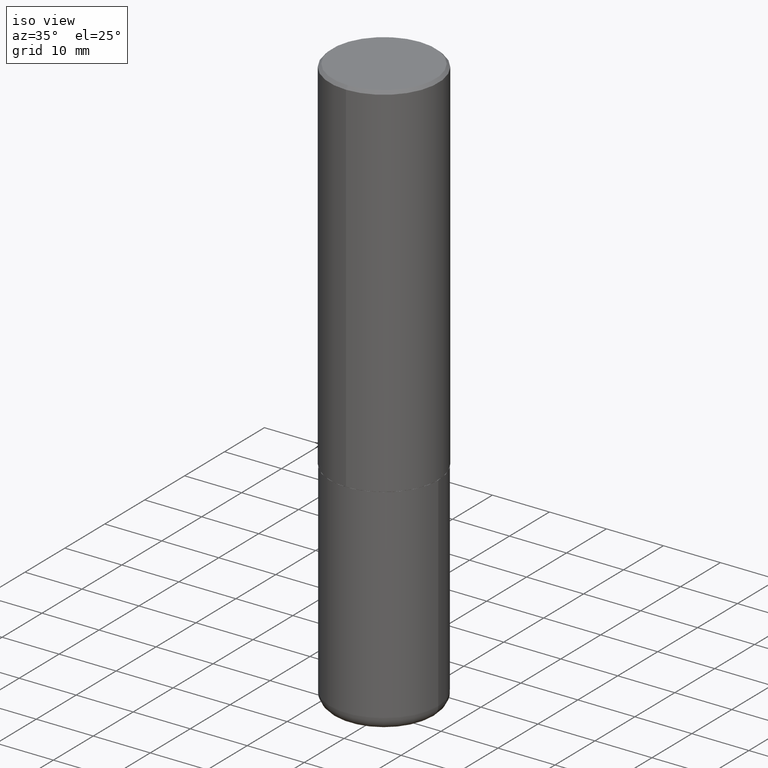
[diagram: clean part render]
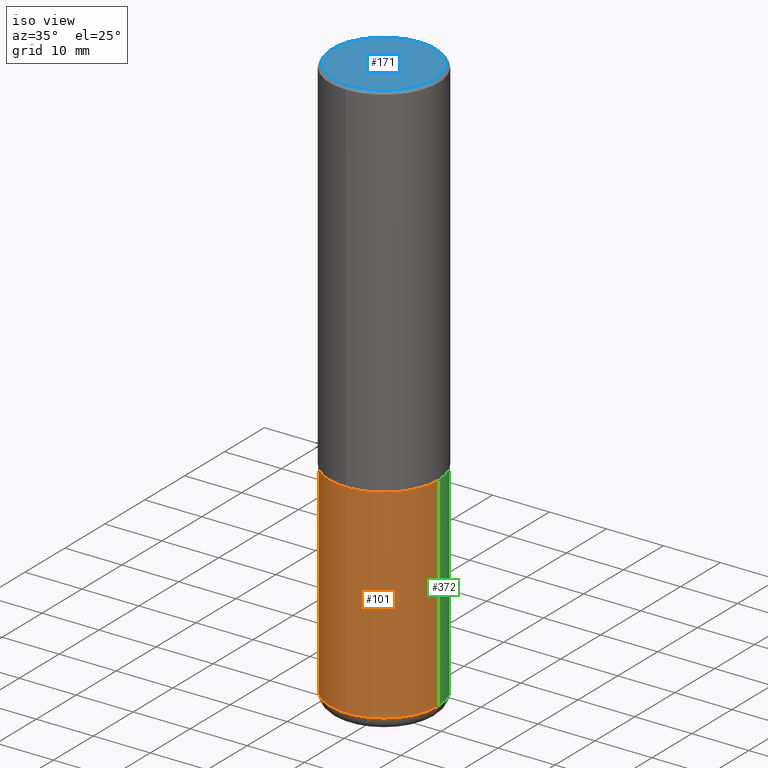
[diagram: same view with three faces highlighted in distinct colors, each labeled with its STEP entity id]
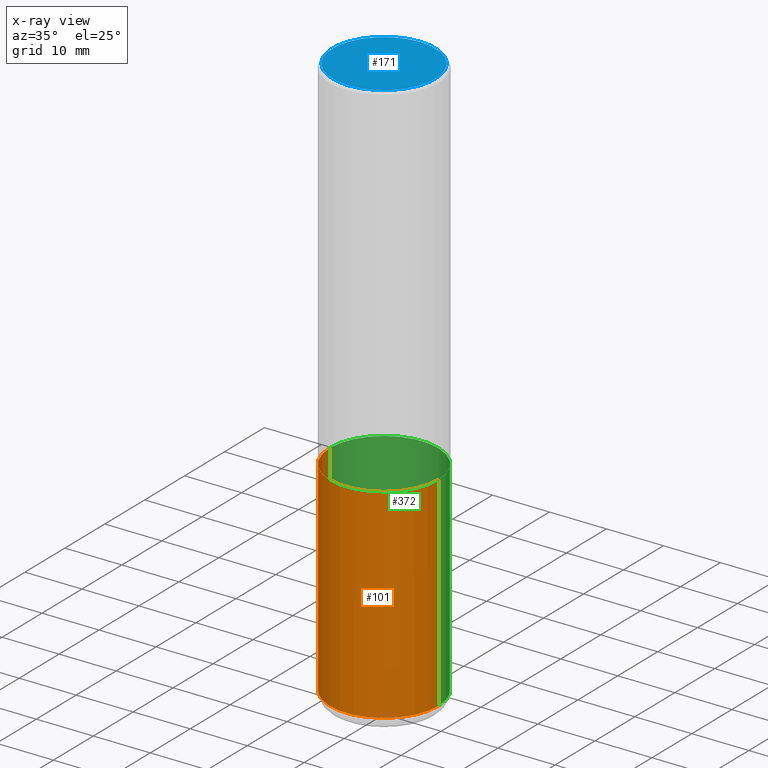
[diagram: x-ray of the same camera — body ghosted, the three highlighted faces saturated]
A machine part, iso view with three faces highlighted in distinct colors.
The next image is the same camera in x-ray (body ghosted, the three faces saturated) — at least one of them is partly hidden behind the body in this view.
Their STEP definitions:

[orange] entity #101 — the highlighted cylindrical surface (partial cylindrical patch) has radius 9.525 mm, axis along (-0, 0, 1).
#4 = DIRECTION ( 'NONE',  ( -2.445468806185136597E-29, 3.491481338843145583E-15, 1.000000000000000000 ) ) ;
#6 = VERTEX_POINT ( 'NONE', #354 ) ;
#8 = DIRECTION ( 'NONE',  ( -2.445468806185136877E-29, 3.491481338843145188E-15, 1.000000000000000000 ) ) ;
#11 = CARTESIAN_POINT ( 'NONE',  ( 6.113672015462840371E-29, -8.728703347107863365E-15, -2.499999999999999556 ) ) ;
#17 = CARTESIAN_POINT ( 'NONE',  ( 0.3749999999999999445, -2.618611004132349622E-15, 1.828566290923475642E-29 ) ) ;
#22 = DIRECTION ( 'NONE',  ( -2.445468806185136597E-29, 3.491481338843145583E-15, 1.000000000000000000 ) ) ;
#54 = ORIENTED_EDGE ( 'NONE', *, *, #252, .T. ) ;
#61 = ORIENTED_EDGE ( 'NONE', *, *, #148, .F. ) ;
#68 = FACE_OUTER_BOUND ( 'NONE', #92, .T. ) ;
#71 = CYLINDRICAL_SURFACE ( 'NONE', #365, 0.3749999999999999445 ) ;
#79 = CARTESIAN_POINT ( 'NONE',  ( 0.3750000000000000555, -1.134731435124021180E-14, -2.499999999999999556 ) ) ;
#88 = ORIENTED_EDGE ( 'NONE', *, *, #315, .F. ) ;
#92 = EDGE_LOOP ( 'NONE', ( #61, #284, #54, #88 ) ) ;
#101 = ADVANCED_FACE ( 'NONE', ( #68 ), #71, .T. ) ;
#131 = LINE ( 'NONE', #17, #322 ) ;
#134 = DIRECTION ( 'NONE',  ( 1.000000000000000000, -6.982962677686264344E-15, 0.000000000000000000 ) ) ;
#148 = EDGE_CURVE ( 'NONE', #6, #389, #195, .T. ) ;
#158 = AXIS2_PLACEMENT_3D ( 'NONE', #11, #234, #134 ) ;
#172 = CARTESIAN_POINT ( 'NONE',  ( 0.3749999999999999445, -1.627030303900904751E-14, -3.910000000000000142 ) ) ;
#189 = DIRECTION ( 'NONE',  ( 1.000000000000000000, -6.982962677686266711E-15, 4.876176775795935793E-29 ) ) ;
#195 = LINE ( 'NONE', #261, #293 ) ;
#197 = AXIS2_PLACEMENT_3D ( 'NONE', #415, #22, #370 ) ;
#223 = VERTEX_POINT ( 'NONE', #79 ) ;
#224 = VERTEX_POINT ( 'NONE', #172 ) ;
#234 = DIRECTION ( 'NONE',  ( -2.445468806185136597E-29, 3.491481338843145583E-15, 1.000000000000000000 ) ) ;
#252 = EDGE_CURVE ( 'NONE', #224, #223, #131, .T. ) ;
#260 = CIRCLE ( 'NONE', #197, 0.3749999999999999445 ) ;
#261 = CARTESIAN_POINT ( 'NONE',  ( -0.3749999999999999445, 2.664535259100375303E-15, -1.844600658845589318E-29 ) ) ;
#284 = ORIENTED_EDGE ( 'NONE', *, *, #367, .T. ) ;
#285 = CIRCLE ( 'NONE', #158, 0.3750000000000000555 ) ;
#293 = VECTOR ( 'NONE', #8, 39.37007874015748143 ) ;
#315 = EDGE_CURVE ( 'NONE', #389, #223, #285, .T. ) ;
#321 = DIRECTION ( 'NONE',  ( -2.445468806185136877E-29, 3.491481338843145188E-15, 1.000000000000000000 ) ) ;
#322 = VECTOR ( 'NONE', #321, 39.37007874015748143 ) ;
#331 = CARTESIAN_POINT ( 'NONE',  ( -0.3750000000000000555, -8.525662431891907096E-15, -2.499999999999999556 ) ) ;
#345 = CARTESIAN_POINT ( 'NONE',  ( 0.000000000000000000, 0.000000000000000000, 0.000000000000000000 ) ) ;
#354 = CARTESIAN_POINT ( 'NONE',  ( -0.3749999999999999445, -1.098715677577632652E-14, -3.910000000000000142 ) ) ;
#365 = AXIS2_PLACEMENT_3D ( 'NONE', #345, #4, #189 ) ;
#367 = EDGE_CURVE ( 'NONE', #6, #224, #260, .T. ) ;
#370 = DIRECTION ( 'NONE',  ( 1.000000000000000000, -6.982962677686263555E-15, 0.000000000000000000 ) ) ;
#389 = VERTEX_POINT ( 'NONE', #331 ) ;
#415 = CARTESIAN_POINT ( 'NONE',  ( 9.561783032183883600E-29, -1.365169203487670064E-14, -3.910000000000000142 ) ) ;

[blue] entity #171 — the highlighted planar face has unit normal (0, -0, -1).
#15 = DIRECTION ( 'NONE',  ( 2.444465131706344694E-29, -3.492918657822378868E-15, -1.000000000000000000 ) ) ;
#16 = ORIENTED_EDGE ( 'NONE', *, *, #323, .T. ) ;
#38 = CARTESIAN_POINT ( 'NONE',  ( -2.504081769186608216E-15, -0.3549999999999999267, 1.308792571606178433E-15 ) ) ;
#77 = DIRECTION ( 'NONE',  ( 6.982962677686265922E-15, 1.000000000000000000, -3.492918657822378868E-15 ) ) ;
#84 = ORIENTED_EDGE ( 'NONE', *, *, #87, .T. ) ;
#87 = EDGE_CURVE ( 'NONE', #147, #309, #137, .T. ) ;
#102 = CARTESIAN_POINT ( 'NONE',  ( -1.681949631662511627E-45, 2.403353262744440834E-31, 6.880644807923424831E-17 ) ) ;
#105 = FACE_OUTER_BOUND ( 'NONE', #369, .T. ) ;
#133 = PLANE ( 'NONE',  #245 ) ;
#137 = CIRCLE ( 'NONE', #204, 0.3549999999999999267 ) ;
#147 = VERTEX_POINT ( 'NONE', #38 ) ;
#171 = ADVANCED_FACE ( 'NONE', ( #105 ), #133, .F. ) ;
#177 = DIRECTION ( 'NONE',  ( -6.982962677686265922E-15, -1.000000000000000000, 3.492918657822378079E-15 ) ) ;
#184 = CIRCLE ( 'NONE', #239, 0.3549999999999999267 ) ;
#204 = AXIS2_PLACEMENT_3D ( 'NONE', #102, #418, #287 ) ;
#237 = CARTESIAN_POINT ( 'NONE',  ( 2.478951750578623815E-15, 0.3549999999999999267, -1.205582899487326820E-15 ) ) ;
#239 = AXIS2_PLACEMENT_3D ( 'NONE', #358, #332, #177 ) ;
#245 = AXIS2_PLACEMENT_3D ( 'NONE', #237, #15, #77 ) ;
#264 = CARTESIAN_POINT ( 'NONE',  ( 2.548781377355487113E-15, 0.3549999999999999267, -1.171179675447709813E-15 ) ) ;
#287 = DIRECTION ( 'NONE',  ( -6.982962677686265922E-15, -1.000000000000000000, 3.492918657822378079E-15 ) ) ;
#309 = VERTEX_POINT ( 'NONE', #264 ) ;
#323 = EDGE_CURVE ( 'NONE', #309, #147, #184, .T. ) ;
#332 = DIRECTION ( 'NONE',  ( -2.444465131706345255E-29, 3.492918657822378473E-15, 1.000000000000000000 ) ) ;
#358 = CARTESIAN_POINT ( 'NONE',  ( -1.681949631662511627E-45, 2.403353262744440834E-31, 6.880644807923424831E-17 ) ) ;
#369 = EDGE_LOOP ( 'NONE', ( #16, #84 ) ) ;
#418 = DIRECTION ( 'NONE',  ( -2.444465131706345255E-29, 3.492918657822378473E-15, 1.000000000000000000 ) ) ;

[green] entity #372 — the highlighted cylindrical surface (partial cylindrical patch) has radius 9.525 mm, axis along (-0, 0, 1).
#2 = EDGE_LOOP ( 'NONE', ( #383, #307, #387, #229 ) ) ;
#6 = VERTEX_POINT ( 'NONE', #354 ) ;
#8 = DIRECTION ( 'NONE',  ( -2.445468806185136877E-29, 3.491481338843145188E-15, 1.000000000000000000 ) ) ;
#17 = CARTESIAN_POINT ( 'NONE',  ( 0.3749999999999999445, -2.618611004132349622E-15, 1.828566290923475642E-29 ) ) ;
#21 = FACE_OUTER_BOUND ( 'NONE', #2, .T. ) ;
#64 = EDGE_CURVE ( 'NONE', #223, #389, #395, .T. ) ;
#79 = CARTESIAN_POINT ( 'NONE',  ( 0.3750000000000000555, -1.134731435124021180E-14, -2.499999999999999556 ) ) ;
#116 = CYLINDRICAL_SURFACE ( 'NONE', #392, 0.3749999999999999445 ) ;
#118 = CARTESIAN_POINT ( 'NONE',  ( 0.000000000000000000, 0.000000000000000000, 0.000000000000000000 ) ) ;
#131 = LINE ( 'NONE', #17, #322 ) ;
#146 = DIRECTION ( 'NONE',  ( 1.000000000000000000, -6.982962677686263555E-15, 0.000000000000000000 ) ) ;
#148 = EDGE_CURVE ( 'NONE', #6, #389, #195, .T. ) ;
#151 = DIRECTION ( 'NONE',  ( -2.445468806185136597E-29, 3.491481338843145583E-15, 1.000000000000000000 ) ) ;
#155 = DIRECTION ( 'NONE',  ( 1.000000000000000000, -6.982962677686264344E-15, 0.000000000000000000 ) ) ;
#172 = CARTESIAN_POINT ( 'NONE',  ( 0.3749999999999999445, -1.627030303900904751E-14, -3.910000000000000142 ) ) ;
#195 = LINE ( 'NONE', #261, #293 ) ;
#223 = VERTEX_POINT ( 'NONE', #79 ) ;
#224 = VERTEX_POINT ( 'NONE', #172 ) ;
#229 = ORIENTED_EDGE ( 'NONE', *, *, #252, .F. ) ;
#252 = EDGE_CURVE ( 'NONE', #224, #223, #131, .T. ) ;
#261 = CARTESIAN_POINT ( 'NONE',  ( -0.3749999999999999445, 2.664535259100375303E-15, -1.844600658845589318E-29 ) ) ;
#272 = CARTESIAN_POINT ( 'NONE',  ( 9.561783032183883600E-29, -1.365169203487670064E-14, -3.910000000000000142 ) ) ;
#293 = VECTOR ( 'NONE', #8, 39.37007874015748143 ) ;
#297 = AXIS2_PLACEMENT_3D ( 'NONE', #272, #151, #146 ) ;
#307 = ORIENTED_EDGE ( 'NONE', *, *, #148, .T. ) ;
#314 = DIRECTION ( 'NONE',  ( -2.445468806185136597E-29, 3.491481338843145583E-15, 1.000000000000000000 ) ) ;
#321 = DIRECTION ( 'NONE',  ( -2.445468806185136877E-29, 3.491481338843145188E-15, 1.000000000000000000 ) ) ;
#322 = VECTOR ( 'NONE', #321, 39.37007874015748143 ) ;
#331 = CARTESIAN_POINT ( 'NONE',  ( -0.3750000000000000555, -8.525662431891907096E-15, -2.499999999999999556 ) ) ;
#339 = DIRECTION ( 'NONE',  ( -2.445468806185136597E-29, 3.491481338843145583E-15, 1.000000000000000000 ) ) ;
#343 = AXIS2_PLACEMENT_3D ( 'NONE', #385, #314, #155 ) ;
#354 = CARTESIAN_POINT ( 'NONE',  ( -0.3749999999999999445, -1.098715677577632652E-14, -3.910000000000000142 ) ) ;
#362 = EDGE_CURVE ( 'NONE', #224, #6, #363, .T. ) ;
#363 = CIRCLE ( 'NONE', #297, 0.3749999999999999445 ) ;
#372 = ADVANCED_FACE ( 'NONE', ( #21 ), #116, .T. ) ;
#375 = DIRECTION ( 'NONE',  ( 1.000000000000000000, -6.982962677686266711E-15, 4.876176775795935793E-29 ) ) ;
#383 = ORIENTED_EDGE ( 'NONE', *, *, #362, .T. ) ;
#385 = CARTESIAN_POINT ( 'NONE',  ( 6.113672015462840371E-29, -8.728703347107863365E-15, -2.499999999999999556 ) ) ;
#387 = ORIENTED_EDGE ( 'NONE', *, *, #64, .F. ) ;
#389 = VERTEX_POINT ( 'NONE', #331 ) ;
#392 = AXIS2_PLACEMENT_3D ( 'NONE', #118, #339, #375 ) ;
#395 = CIRCLE ( 'NONE', #343, 0.3750000000000000555 ) ;